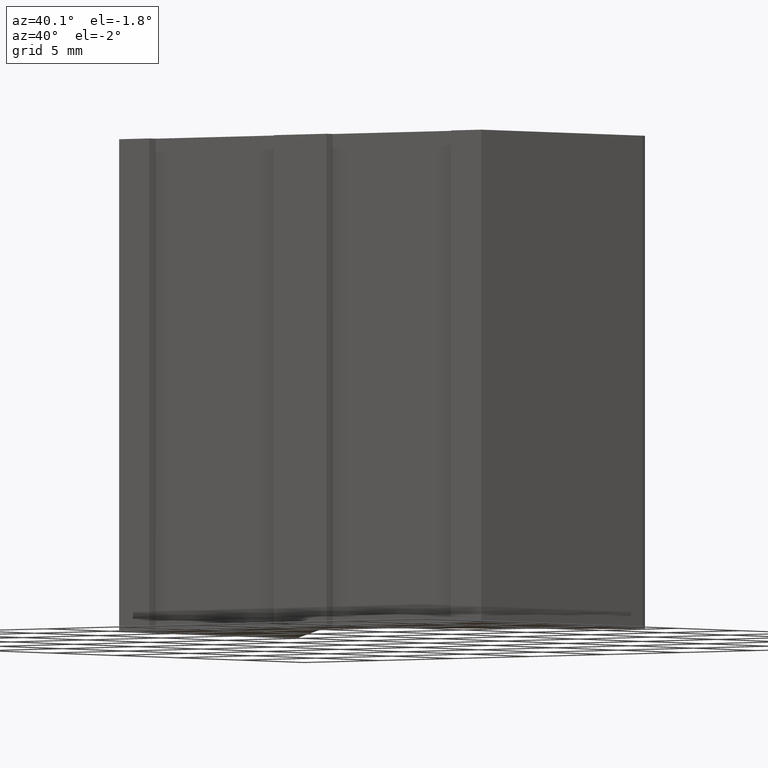
[diagram: clean part render]
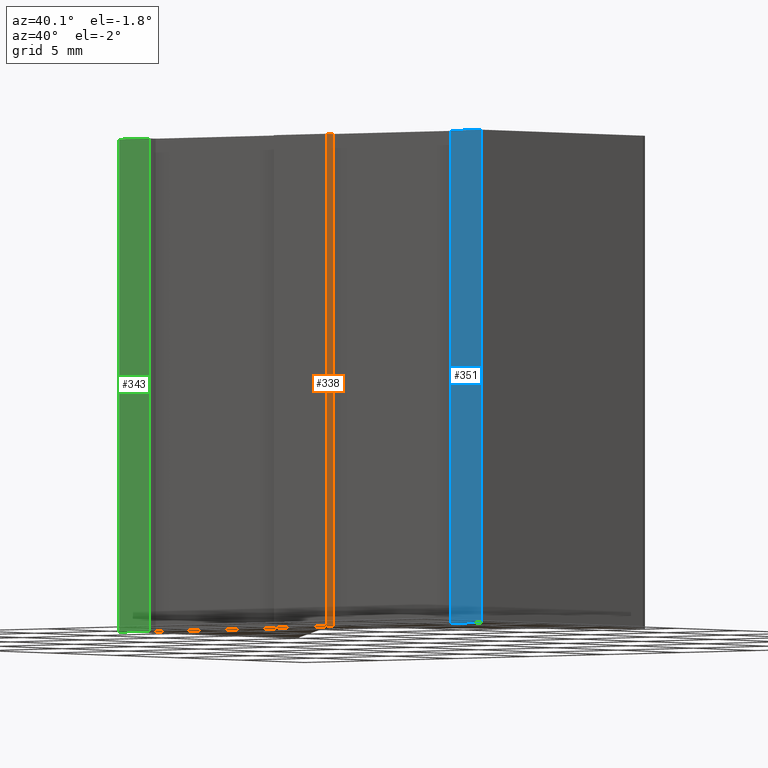
[diagram: same view with three faces highlighted in distinct colors, each labeled with its STEP entity id]
A machine part, auxiliary view with three faces highlighted in distinct colors.
Their STEP definitions:

[orange] entity #338 — the highlighted planar face has unit normal (1, 0, 0).
#21=FACE_OUTER_BOUND('',#39,.T.);
#39=EDGE_LOOP('',(#248,#249,#250,#251));
#64=LINE('',#504,#106);
#77=LINE('',#535,#119);
#78=LINE('',#538,#120);
#79=LINE('',#539,#121);
#106=VECTOR('',#408,10.);
#119=VECTOR('',#431,10.);
#120=VECTOR('',#434,10.);
#121=VECTOR('',#435,10.);
#148=VERTEX_POINT('',#501);
#149=VERTEX_POINT('',#503);
#162=VERTEX_POINT('',#533);
#163=VERTEX_POINT('',#537);
#180=EDGE_CURVE('',#149,#148,#64,.T.);
#196=EDGE_CURVE('',#162,#148,#77,.T.);
#197=EDGE_CURVE('',#162,#163,#78,.T.);
#198=EDGE_CURVE('',#163,#149,#79,.T.);
#248=ORIENTED_EDGE('',*,*,#197,.T.);
#249=ORIENTED_EDGE('',*,*,#198,.T.);
#250=ORIENTED_EDGE('',*,*,#180,.T.);
#251=ORIENTED_EDGE('',*,*,#196,.F.);
#323=PLANE('',#382);
#338=ADVANCED_FACE('',(#21),#323,.T.);
#382=AXIS2_PLACEMENT_3D('',#536,#432,#433);
#408=DIRECTION('',(0.,1.,0.));
#431=DIRECTION('',(0.,0.,-1.));
#432=DIRECTION('center_axis',(1.,0.,0.));
#433=DIRECTION('ref_axis',(0.,0.,-1.));
#434=DIRECTION('',(0.,-1.,0.));
#435=DIRECTION('',(0.,0.,-1.));
#501=CARTESIAN_POINT('',(1.75,0.500000000000001,-12.5));
#503=CARTESIAN_POINT('',(1.75,4.73042667009824E-15,-12.5));
#504=CARTESIAN_POINT('',(1.75,0.500000000000001,-12.5));
#533=CARTESIAN_POINT('',(1.75,0.500000000000001,12.5));
#535=CARTESIAN_POINT('',(1.75,0.500000000000001,0.));
#536=CARTESIAN_POINT('Origin',(1.75,0.500000000000001,0.));
#537=CARTESIAN_POINT('',(1.75,4.73042667009824E-15,12.5));
#538=CARTESIAN_POINT('',(1.75,0.500000000000001,12.5));
#539=CARTESIAN_POINT('',(1.75,4.73042667009824E-15,0.));

[blue] entity #351 — the highlighted planar face has unit normal (-0, -1, 0).
#34=FACE_OUTER_BOUND('',#52,.T.);
#52=EDGE_LOOP('',(#300,#301,#302,#303));
#61=LINE('',#498,#103);
#75=LINE('',#531,#117);
#100=LINE('',#587,#142);
#101=LINE('',#589,#143);
#103=VECTOR('',#405,10.);
#117=VECTOR('',#427,10.);
#142=VECTOR('',#486,10.);
#143=VECTOR('',#489,10.);
#144=VERTEX_POINT('',#494);
#146=VERTEX_POINT('',#497);
#160=VERTEX_POINT('',#527);
#175=VERTEX_POINT('',#585);
#177=EDGE_CURVE('',#146,#144,#61,.T.);
#194=EDGE_CURVE('',#160,#146,#75,.T.);
#222=EDGE_CURVE('',#144,#175,#100,.T.);
#223=EDGE_CURVE('',#175,#160,#101,.T.);
#300=ORIENTED_EDGE('',*,*,#223,.T.);
#301=ORIENTED_EDGE('',*,*,#194,.T.);
#302=ORIENTED_EDGE('',*,*,#177,.T.);
#303=ORIENTED_EDGE('',*,*,#222,.T.);
#333=PLANE('',#398);
#351=ADVANCED_FACE('',(#34),#333,.T.);
#398=AXIS2_PLACEMENT_3D('',#588,#487,#488);
#405=DIRECTION('',(1.,-6.12323399573677E-17,0.));
#427=DIRECTION('',(0.,0.,-1.));
#486=DIRECTION('',(0.,0.,1.));
#487=DIRECTION('center_axis',(-6.12323399573677E-17,-1.,0.));
#488=DIRECTION('ref_axis',(0.,0.,-1.));
#489=DIRECTION('',(-1.,6.12323399573677E-17,0.));
#494=CARTESIAN_POINT('',(12.,4.47818588036147E-16,-12.5));
#497=CARTESIAN_POINT('',(10.,5.70283267950883E-16,-12.5));
#498=CARTESIAN_POINT('',(12.,4.47818588036147E-16,-12.5));
#527=CARTESIAN_POINT('',(10.,5.70283267950883E-16,12.5));
#531=CARTESIAN_POINT('',(10.,5.70283267950883E-16,0.));
#585=CARTESIAN_POINT('',(12.,4.47818588036147E-16,12.5));
#587=CARTESIAN_POINT('',(12.,4.47818588036147E-16,0.));
#588=CARTESIAN_POINT('Origin',(12.,4.47818588036147E-16,0.));
#589=CARTESIAN_POINT('',(12.,4.47818588036147E-16,12.5));

[green] entity #343 — the highlighted planar face has unit normal (0, -1, 0).
#26=FACE_OUTER_BOUND('',#44,.T.);
#44=EDGE_LOOP('',(#268,#269,#270,#271));
#69=LINE('',#514,#111);
#87=LINE('',#555,#129);
#88=LINE('',#558,#130);
#89=LINE('',#559,#131);
#111=VECTOR('',#413,10.);
#129=VECTOR('',#451,10.);
#130=VECTOR('',#454,10.);
#131=VECTOR('',#455,10.);
#153=VERTEX_POINT('',#511);
#154=VERTEX_POINT('',#513);
#167=VERTEX_POINT('',#553);
#168=VERTEX_POINT('',#557);
#185=EDGE_CURVE('',#154,#153,#69,.T.);
#206=EDGE_CURVE('',#167,#153,#87,.T.);
#207=EDGE_CURVE('',#167,#168,#88,.T.);
#208=EDGE_CURVE('',#168,#154,#89,.T.);
#268=ORIENTED_EDGE('',*,*,#207,.T.);
#269=ORIENTED_EDGE('',*,*,#208,.T.);
#270=ORIENTED_EDGE('',*,*,#185,.T.);
#271=ORIENTED_EDGE('',*,*,#206,.F.);
#328=PLANE('',#387);
#343=ADVANCED_FACE('',(#26),#328,.T.);
#387=AXIS2_PLACEMENT_3D('',#556,#452,#453);
#413=DIRECTION('',(1.,6.12323399573678E-17,0.));
#451=DIRECTION('',(0.,0.,-1.));
#452=DIRECTION('center_axis',(6.12323399573678E-17,-1.,0.));
#453=DIRECTION('ref_axis',(0.,0.,-1.));
#454=DIRECTION('',(-1.,-6.12323399573678E-17,0.));
#455=DIRECTION('',(0.,0.,-1.));
#511=CARTESIAN_POINT('',(-10.,5.70283267950883E-16,-12.5));
#513=CARTESIAN_POINT('',(-12.,4.47818588036147E-16,-12.5));
#514=CARTESIAN_POINT('',(-10.,5.70283267950883E-16,-12.5));
#553=CARTESIAN_POINT('',(-10.,5.70283267950883E-16,12.5));
#555=CARTESIAN_POINT('',(-10.,5.70283267950883E-16,0.));
#556=CARTESIAN_POINT('Origin',(-10.,5.70283267950883E-16,0.));
#557=CARTESIAN_POINT('',(-12.,4.47818588036147E-16,12.5));
#558=CARTESIAN_POINT('',(-10.,5.70283267950883E-16,12.5));
#559=CARTESIAN_POINT('',(-12.,4.47818588036147E-16,0.));